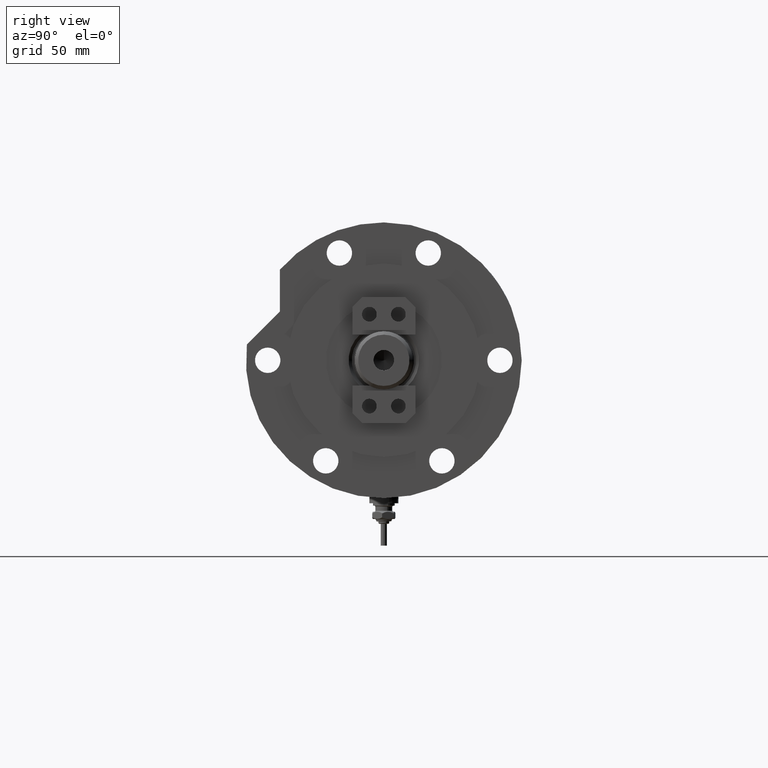
[diagram: clean part render]
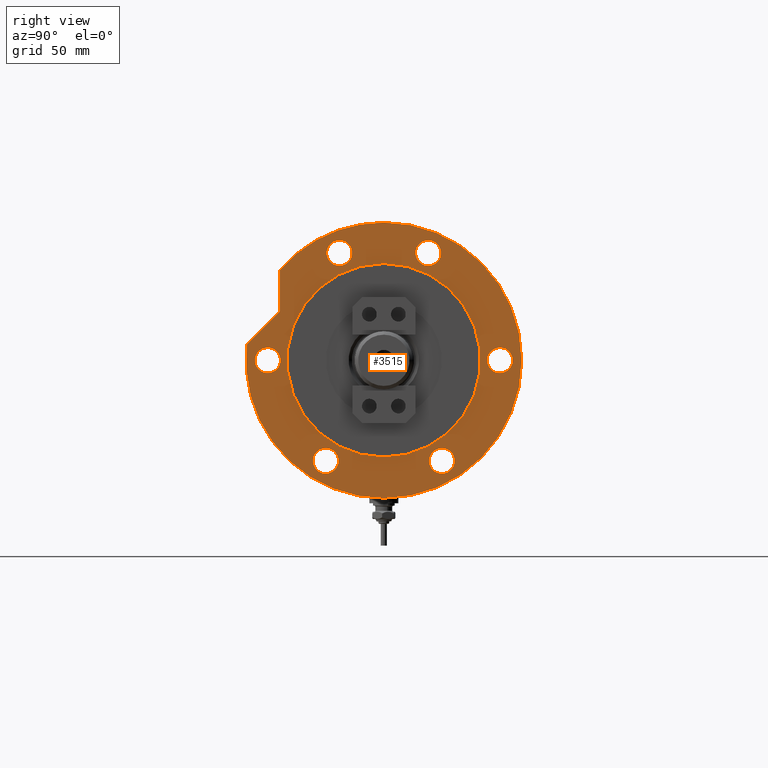
[diagram: same view with one face highlighted and labeled with its STEP entity id]
A machine part, right view. The second image highlights one B-rep face of the part: STEP entity #3515.
In plain terms, the highlighted planar face has unit normal (1, 0, -0).
Its self-contained STEP definition (entity closure, byte-faithful):
#18 = DIRECTION ( 'NONE',  ( 0.000000000000000000, 0.000000000000000000, 1.000000000000000000 ) ) ;
#106 = ORIENTED_EDGE ( 'NONE', *, *, #3642, .F. ) ;
#133 = CARTESIAN_POINT ( 'NONE',  ( 44.34621756054168173, 18.36880475352450048, 19.00000000000000000 ) ) ;
#146 = CIRCLE ( 'NONE', #4686, 5.249999999999998224 ) ;
#179 = CARTESIAN_POINT ( 'NONE',  ( 57.00000000000000000, 6.980486755139912911E-15, 19.00000000000000000 ) ) ;
#198 = EDGE_CURVE ( 'NONE', #5171, #593, #2711, .T. ) ;
#227 = DIRECTION ( 'NONE',  ( 0.000000000000000000, 0.000000000000000000, 1.000000000000000000 ) ) ;
#252 = EDGE_LOOP ( 'NONE', ( #4031, #7771 ) ) ;
#299 = DIRECTION ( 'NONE',  ( 1.000000000000000000, 0.000000000000000000, 0.000000000000000000 ) ) ;
#302 = FACE_BOUND ( 'NONE', #6031, .T. ) ;
#402 = FACE_BOUND ( 'NONE', #5699, .T. ) ;
#407 = VERTEX_POINT ( 'NONE', #5599 ) ;
#543 = VERTEX_POINT ( 'NONE', #631 ) ;
#584 = ORIENTED_EDGE ( 'NONE', *, *, #6499, .F. ) ;
#593 = VERTEX_POINT ( 'NONE', #8261 ) ;
#607 = LINE ( 'NONE', #3680, #837 ) ;
#624 = EDGE_LOOP ( 'NONE', ( #5710, #6220 ) ) ;
#631 = CARTESIAN_POINT ( 'NONE',  ( -46.81921938165294961, -24.00000000000018829, 19.00000000000000000 ) ) ;
#754 = CARTESIAN_POINT ( 'NONE',  ( 0.000000000000000000, 48.00000000000000000, 19.00000000000000000 ) ) ;
#766 = CARTESIAN_POINT ( 'NONE',  ( -40.00000000000000000, 0.000000000000000000, 19.00000000000000000 ) ) ;
#770 = DIRECTION ( 'NONE',  ( 1.000000000000000000, 0.000000000000000000, 0.000000000000000000 ) ) ;
#779 = FACE_BOUND ( 'NONE', #7452, .T. ) ;
#828 = AXIS2_PLACEMENT_3D ( 'NONE', #7935, #3363, #2246 ) ;
#837 = VECTOR ( 'NONE', #1837, 999.9999999999998863 ) ;
#889 = DIRECTION ( 'NONE',  ( 1.000000000000000000, 0.000000000000000000, 0.000000000000000000 ) ) ;
#912 = EDGE_CURVE ( 'NONE', #543, #5900, #7508, .T. ) ;
#926 = AXIS2_PLACEMENT_3D ( 'NONE', #6632, #4622, #7212 ) ;
#927 = DIRECTION ( 'NONE',  ( 1.000000000000000000, 0.000000000000000000, -0.000000000000000000 ) ) ;
#1038 = EDGE_CURVE ( 'NONE', #407, #3269, #2288, .T. ) ;
#1120 = DIRECTION ( 'NONE',  ( 1.000000000000000000, 0.000000000000000000, 0.000000000000000000 ) ) ;
#1163 = FACE_BOUND ( 'NONE', #4929, .T. ) ;
#1197 = EDGE_CURVE ( 'NONE', #2198, #3791, #3995, .T. ) ;
#1202 = AXIS2_PLACEMENT_3D ( 'NONE', #3139, #5671, #7635 ) ;
#1203 = DIRECTION ( 'NONE',  ( 0.000000000000000000, 0.000000000000000000, 1.000000000000000000 ) ) ;
#1311 = ORIENTED_EDGE ( 'NONE', *, *, #5929, .F. ) ;
#1362 = VERTEX_POINT ( 'NONE', #1844 ) ;
#1367 = EDGE_LOOP ( 'NONE', ( #1311, #6203, #8016, #7252, #8171 ) ) ;
#1442 = CARTESIAN_POINT ( 'NONE',  ( 0.000000000000000000, 42.98007820311755012, 19.00000000000000000 ) ) ;
#1502 = AXIS2_PLACEMENT_3D ( 'NONE', #754, #5833, #2700 ) ;
#1660 = AXIS2_PLACEMENT_3D ( 'NONE', #5503, #6038, #1120 ) ;
#1777 = DIRECTION ( 'NONE',  ( 1.000000000000000000, 0.000000000000000000, 0.000000000000000000 ) ) ;
#1797 = AXIS2_PLACEMENT_3D ( 'NONE', #1847, #1203, #3742 ) ;
#1837 = DIRECTION ( 'NONE',  ( 0.7071067811865510144, -0.7071067811865441310, 0.000000000000000000 ) ) ;
#1844 = CARTESIAN_POINT ( 'NONE',  ( -57.00000000000000000, 0.000000000000000000, 19.00000000000000000 ) ) ;
#1846 = EDGE_CURVE ( 'NONE', #3791, #2198, #5476, .T. ) ;
#1847 = CARTESIAN_POINT ( 'NONE',  ( 0.000000000000000000, -48.00000000000000000, 19.00000000000000000 ) ) ;
#1888 = EDGE_CURVE ( 'NONE', #2997, #2449, #2559, .T. ) ;
#1984 = ORIENTED_EDGE ( 'NONE', *, *, #3213, .F. ) ;
#1992 = VERTEX_POINT ( 'NONE', #3500 ) ;
#2168 = DIRECTION ( 'NONE',  ( 0.000000000000000000, 0.000000000000000000, 1.000000000000000000 ) ) ;
#2198 = VERTEX_POINT ( 'NONE', #7784 ) ;
#2225 = PLANE ( 'NONE',  #3092 ) ;
#2246 = DIRECTION ( 'NONE',  ( 1.000000000000000000, 0.000000000000000000, 0.000000000000000000 ) ) ;
#2288 = CIRCLE ( 'NONE', #7902, 5.249999999999997335 ) ;
#2305 = ORIENTED_EDGE ( 'NONE', *, *, #4771, .F. ) ;
#2430 = AXIS2_PLACEMENT_3D ( 'NONE', #3493, #6028, #299 ) ;
#2449 = VERTEX_POINT ( 'NONE', #4885 ) ;
#2506 = EDGE_LOOP ( 'NONE', ( #4854, #4387 ) ) ;
#2535 = AXIS2_PLACEMENT_3D ( 'NONE', #7624, #2571, #4459 ) ;
#2559 = CIRCLE ( 'NONE', #1502, 5.249999999999998224 ) ;
#2571 = DIRECTION ( 'NONE',  ( 0.000000000000000000, 0.000000000000000000, 1.000000000000000000 ) ) ;
#2611 = VECTOR ( 'NONE', #927, 1000.000000000000000 ) ;
#2612 = DIRECTION ( 'NONE',  ( 1.000000000000000000, 0.000000000000000000, 0.000000000000000000 ) ) ;
#2700 = DIRECTION ( 'NONE',  ( 1.000000000000000000, 0.000000000000000000, 0.000000000000000000 ) ) ;
#2711 = CIRCLE ( 'NONE', #828, 40.00000000000000000 ) ;
#2730 = DIRECTION ( 'NONE',  ( 0.000000000000000000, 0.000000000000000000, 1.000000000000000000 ) ) ;
#2765 = EDGE_CURVE ( 'NONE', #5900, #543, #3994, .T. ) ;
#2925 = ORIENTED_EDGE ( 'NONE', *, *, #198, .F. ) ;
#2970 = VERTEX_POINT ( 'NONE', #4827 ) ;
#2997 = VERTEX_POINT ( 'NONE', #5956 ) ;
#3092 = AXIS2_PLACEMENT_3D ( 'NONE', #4770, #2730, #6537 ) ;
#3139 = CARTESIAN_POINT ( 'NONE',  ( -41.56921938165294961, -24.00000000000018829, 19.00000000000000000 ) ) ;
#3198 = CARTESIAN_POINT ( 'NONE',  ( 49.59621756054168173, -18.36880475352450048, 19.00000000000000000 ) ) ;
#3199 = CIRCLE ( 'NONE', #926, 57.00000000000000000 ) ;
#3213 = EDGE_CURVE ( 'NONE', #5822, #2970, #4920, .T. ) ;
#3214 = CARTESIAN_POINT ( 'NONE',  ( 39.09621756054168173, 18.36880475352450048, 19.00000000000000000 ) ) ;
#3269 = VERTEX_POINT ( 'NONE', #3198 ) ;
#3351 = AXIS2_PLACEMENT_3D ( 'NONE', #6284, #3721, #4439 ) ;
#3363 = DIRECTION ( 'NONE',  ( 0.000000000000000000, 0.000000000000000000, 1.000000000000000000 ) ) ;
#3408 = DIRECTION ( 'NONE',  ( 0.000000000000000000, 0.000000000000000000, 1.000000000000000000 ) ) ;
#3493 = CARTESIAN_POINT ( 'NONE',  ( 0.000000000000000000, -48.00000000000000000, 19.00000000000000000 ) ) ;
#3500 = CARTESIAN_POINT ( 'NONE',  ( 49.59621756054168173, 18.36880475352450048, 19.00000000000000000 ) ) ;
#3501 = CIRCLE ( 'NONE', #1660, 57.00000000000000000 ) ;
#3515 = ADVANCED_FACE ( 'NONE', ( #3573, #1163, #402, #779, #4657, #7909, #7250, #302 ), #2225, .T. ) ;
#3573 = FACE_BOUND ( 'NONE', #2506, .T. ) ;
#3622 = CIRCLE ( 'NONE', #1797, 5.249999999999998224 ) ;
#3642 = EDGE_CURVE ( 'NONE', #5508, #1992, #7109, .T. ) ;
#3680 = CARTESIAN_POINT ( 'NONE',  ( 31.59476718220863845, 31.59476718220895108, 19.00000000000000000 ) ) ;
#3696 = CIRCLE ( 'NONE', #2535, 5.249999999999997335 ) ;
#3721 = DIRECTION ( 'NONE',  ( 0.000000000000000000, 0.000000000000000000, 1.000000000000000000 ) ) ;
#3742 = DIRECTION ( 'NONE',  ( 1.000000000000000000, 0.000000000000000000, 0.000000000000000000 ) ) ;
#3791 = VERTEX_POINT ( 'NONE', #4308 ) ;
#3908 = CIRCLE ( 'NONE', #4710, 5.249999999999997335 ) ;
#3935 = CARTESIAN_POINT ( 'NONE',  ( -41.56921938165294961, -24.00000000000018829, 19.00000000000000000 ) ) ;
#3994 = CIRCLE ( 'NONE', #4256, 5.249999999999997335 ) ;
#3995 = CIRCLE ( 'NONE', #8305, 5.249999999999997335 ) ;
#4030 = AXIS2_PLACEMENT_3D ( 'NONE', #4130, #8126, #1777 ) ;
#4031 = ORIENTED_EDGE ( 'NONE', *, *, #1197, .F. ) ;
#4130 = CARTESIAN_POINT ( 'NONE',  ( 0.000000000000000000, 0.000000000000000000, 19.00000000000000000 ) ) ;
#4256 = AXIS2_PLACEMENT_3D ( 'NONE', #3935, #6477, #5853 ) ;
#4308 = CARTESIAN_POINT ( 'NONE',  ( -36.31921938165311303, 23.99999999999990408, 19.00000000000000000 ) ) ;
#4316 = DIRECTION ( 'NONE',  ( 1.000000000000000000, 0.000000000000000000, 0.000000000000000000 ) ) ;
#4387 = ORIENTED_EDGE ( 'NONE', *, *, #4540, .F. ) ;
#4439 = DIRECTION ( 'NONE',  ( 1.000000000000000000, 0.000000000000000000, 0.000000000000000000 ) ) ;
#4459 = DIRECTION ( 'NONE',  ( 1.000000000000000000, 0.000000000000000000, 0.000000000000000000 ) ) ;
#4539 = AXIS2_PLACEMENT_3D ( 'NONE', #133, #3408, #770 ) ;
#4540 = EDGE_CURVE ( 'NONE', #2449, #2997, #146, .T. ) ;
#4553 = CARTESIAN_POINT ( 'NONE',  ( 0.000000000000000000, 0.000000000000000000, 19.00000000000000000 ) ) ;
#4622 = DIRECTION ( 'NONE',  ( 0.000000000000000000, 0.000000000000000000, 1.000000000000000000 ) ) ;
#4623 = EDGE_CURVE ( 'NONE', #5771, #1362, #5489, .T. ) ;
#4657 = FACE_BOUND ( 'NONE', #624, .T. ) ;
#4686 = AXIS2_PLACEMENT_3D ( 'NONE', #5175, #5140, #7727 ) ;
#4710 = AXIS2_PLACEMENT_3D ( 'NONE', #7968, #2168, #889 ) ;
#4749 = ORIENTED_EDGE ( 'NONE', *, *, #8186, .F. ) ;
#4770 = CARTESIAN_POINT ( 'NONE',  ( 0.000000000000000000, 0.000000000000000000, 19.00000000000000000 ) ) ;
#4771 = EDGE_CURVE ( 'NONE', #593, #5171, #8059, .T. ) ;
#4827 = CARTESIAN_POINT ( 'NONE',  ( -5.249999999999998224, -48.00000000000000000, 19.00000000000000000 ) ) ;
#4854 = ORIENTED_EDGE ( 'NONE', *, *, #1888, .F. ) ;
#4885 = CARTESIAN_POINT ( 'NONE',  ( 5.249999999999998224, 48.00000000000000000, 19.00000000000000000 ) ) ;
#4920 = CIRCLE ( 'NONE', #2430, 5.249999999999998224 ) ;
#4929 = EDGE_LOOP ( 'NONE', ( #106, #584 ) ) ;
#5007 = CARTESIAN_POINT ( 'NONE',  ( 37.43945616129992970, 42.98007820311755012, 19.00000000000000000 ) ) ;
#5024 = EDGE_CURVE ( 'NONE', #5771, #7076, #607, .T. ) ;
#5140 = DIRECTION ( 'NONE',  ( 0.000000000000000000, 0.000000000000000000, 1.000000000000000000 ) ) ;
#5171 = VERTEX_POINT ( 'NONE', #766 ) ;
#5175 = CARTESIAN_POINT ( 'NONE',  ( 0.000000000000000000, 48.00000000000000000, 19.00000000000000000 ) ) ;
#5339 = EDGE_CURVE ( 'NONE', #1362, #5637, #3501, .T. ) ;
#5476 = CIRCLE ( 'NONE', #3351, 5.249999999999997335 ) ;
#5489 = CIRCLE ( 'NONE', #7268, 57.00000000000000000 ) ;
#5503 = CARTESIAN_POINT ( 'NONE',  ( 0.000000000000000000, 0.000000000000000000, 19.00000000000000000 ) ) ;
#5508 = VERTEX_POINT ( 'NONE', #3214 ) ;
#5541 = EDGE_CURVE ( 'NONE', #2970, #5822, #3622, .T. ) ;
#5599 = CARTESIAN_POINT ( 'NONE',  ( 39.09621756054168173, -18.36880475352450048, 19.00000000000000000 ) ) ;
#5637 = VERTEX_POINT ( 'NONE', #179 ) ;
#5671 = DIRECTION ( 'NONE',  ( 0.000000000000000000, 0.000000000000000000, 1.000000000000000000 ) ) ;
#5699 = EDGE_LOOP ( 'NONE', ( #8065, #4749 ) ) ;
#5710 = ORIENTED_EDGE ( 'NONE', *, *, #912, .F. ) ;
#5771 = VERTEX_POINT ( 'NONE', #7605 ) ;
#5822 = VERTEX_POINT ( 'NONE', #6439 ) ;
#5833 = DIRECTION ( 'NONE',  ( 0.000000000000000000, 0.000000000000000000, 1.000000000000000000 ) ) ;
#5853 = DIRECTION ( 'NONE',  ( 1.000000000000000000, 0.000000000000000000, 0.000000000000000000 ) ) ;
#5900 = VERTEX_POINT ( 'NONE', #7816 ) ;
#5929 = EDGE_CURVE ( 'NONE', #7076, #6765, #7277, .T. ) ;
#5956 = CARTESIAN_POINT ( 'NONE',  ( -5.249999999999998224, 48.00000000000000000, 19.00000000000000000 ) ) ;
#6028 = DIRECTION ( 'NONE',  ( 0.000000000000000000, 0.000000000000000000, 1.000000000000000000 ) ) ;
#6031 = EDGE_LOOP ( 'NONE', ( #2925, #2305 ) ) ;
#6038 = DIRECTION ( 'NONE',  ( 0.000000000000000000, 0.000000000000000000, 1.000000000000000000 ) ) ;
#6203 = ORIENTED_EDGE ( 'NONE', *, *, #5024, .F. ) ;
#6220 = ORIENTED_EDGE ( 'NONE', *, *, #2765, .F. ) ;
#6284 = CARTESIAN_POINT ( 'NONE',  ( -41.56921938165310593, 23.99999999999990408, 19.00000000000000000 ) ) ;
#6439 = CARTESIAN_POINT ( 'NONE',  ( 5.249999999999998224, -48.00000000000000000, 19.00000000000000000 ) ) ;
#6477 = DIRECTION ( 'NONE',  ( 0.000000000000000000, 0.000000000000000000, 1.000000000000000000 ) ) ;
#6499 = EDGE_CURVE ( 'NONE', #1992, #5508, #3908, .T. ) ;
#6537 = DIRECTION ( 'NONE',  ( 1.000000000000000000, 0.000000000000000000, -0.000000000000000000 ) ) ;
#6632 = CARTESIAN_POINT ( 'NONE',  ( 0.000000000000000000, 0.000000000000000000, 19.00000000000000000 ) ) ;
#6765 = VERTEX_POINT ( 'NONE', #5007 ) ;
#6929 = DIRECTION ( 'NONE',  ( 0.000000000000000000, 0.000000000000000000, 1.000000000000000000 ) ) ;
#7076 = VERTEX_POINT ( 'NONE', #7143 ) ;
#7109 = CIRCLE ( 'NONE', #4539, 5.249999999999997335 ) ;
#7143 = CARTESIAN_POINT ( 'NONE',  ( 20.20945616129993283, 42.98007820311755012, 19.00000000000000000 ) ) ;
#7212 = DIRECTION ( 'NONE',  ( 1.000000000000000000, 0.000000000000000000, 0.000000000000000000 ) ) ;
#7250 = FACE_OUTER_BOUND ( 'NONE', #1367, .T. ) ;
#7252 = ORIENTED_EDGE ( 'NONE', *, *, #5339, .T. ) ;
#7268 = AXIS2_PLACEMENT_3D ( 'NONE', #4553, #227, #7809 ) ;
#7277 = LINE ( 'NONE', #1442, #2611 ) ;
#7280 = EDGE_CURVE ( 'NONE', #5637, #6765, #3199, .T. ) ;
#7294 = ORIENTED_EDGE ( 'NONE', *, *, #5541, .F. ) ;
#7452 = EDGE_LOOP ( 'NONE', ( #7294, #1984 ) ) ;
#7508 = CIRCLE ( 'NONE', #1202, 5.249999999999997335 ) ;
#7605 = CARTESIAN_POINT ( 'NONE',  ( 6.569366352211361004, 56.62016801220598694, 19.00000000000000000 ) ) ;
#7624 = CARTESIAN_POINT ( 'NONE',  ( 44.34621756054168173, -18.36880475352450048, 19.00000000000000000 ) ) ;
#7635 = DIRECTION ( 'NONE',  ( 1.000000000000000000, 0.000000000000000000, 0.000000000000000000 ) ) ;
#7668 = CARTESIAN_POINT ( 'NONE',  ( 44.34621756054168173, -18.36880475352450048, 19.00000000000000000 ) ) ;
#7727 = DIRECTION ( 'NONE',  ( 1.000000000000000000, 0.000000000000000000, 0.000000000000000000 ) ) ;
#7771 = ORIENTED_EDGE ( 'NONE', *, *, #1846, .F. ) ;
#7784 = CARTESIAN_POINT ( 'NONE',  ( -46.81921938165310593, 23.99999999999990408, 19.00000000000000000 ) ) ;
#7809 = DIRECTION ( 'NONE',  ( 1.000000000000000000, 0.000000000000000000, 0.000000000000000000 ) ) ;
#7816 = CARTESIAN_POINT ( 'NONE',  ( -36.31921938165294961, -24.00000000000018829, 19.00000000000000000 ) ) ;
#7902 = AXIS2_PLACEMENT_3D ( 'NONE', #7668, #18, #2612 ) ;
#7909 = FACE_BOUND ( 'NONE', #252, .T. ) ;
#7935 = CARTESIAN_POINT ( 'NONE',  ( 0.000000000000000000, 0.000000000000000000, 19.00000000000000000 ) ) ;
#7968 = CARTESIAN_POINT ( 'NONE',  ( 44.34621756054168173, 18.36880475352450048, 19.00000000000000000 ) ) ;
#8016 = ORIENTED_EDGE ( 'NONE', *, *, #4623, .T. ) ;
#8059 = CIRCLE ( 'NONE', #4030, 40.00000000000000000 ) ;
#8065 = ORIENTED_EDGE ( 'NONE', *, *, #1038, .F. ) ;
#8126 = DIRECTION ( 'NONE',  ( 0.000000000000000000, 0.000000000000000000, 1.000000000000000000 ) ) ;
#8171 = ORIENTED_EDGE ( 'NONE', *, *, #7280, .T. ) ;
#8186 = EDGE_CURVE ( 'NONE', #3269, #407, #3696, .T. ) ;
#8237 = CARTESIAN_POINT ( 'NONE',  ( -41.56921938165310593, 23.99999999999990408, 19.00000000000000000 ) ) ;
#8261 = CARTESIAN_POINT ( 'NONE',  ( 40.00000000000000000, 4.898587196589413026E-15, 19.00000000000000000 ) ) ;
#8305 = AXIS2_PLACEMENT_3D ( 'NONE', #8237, #6929, #4316 ) ;